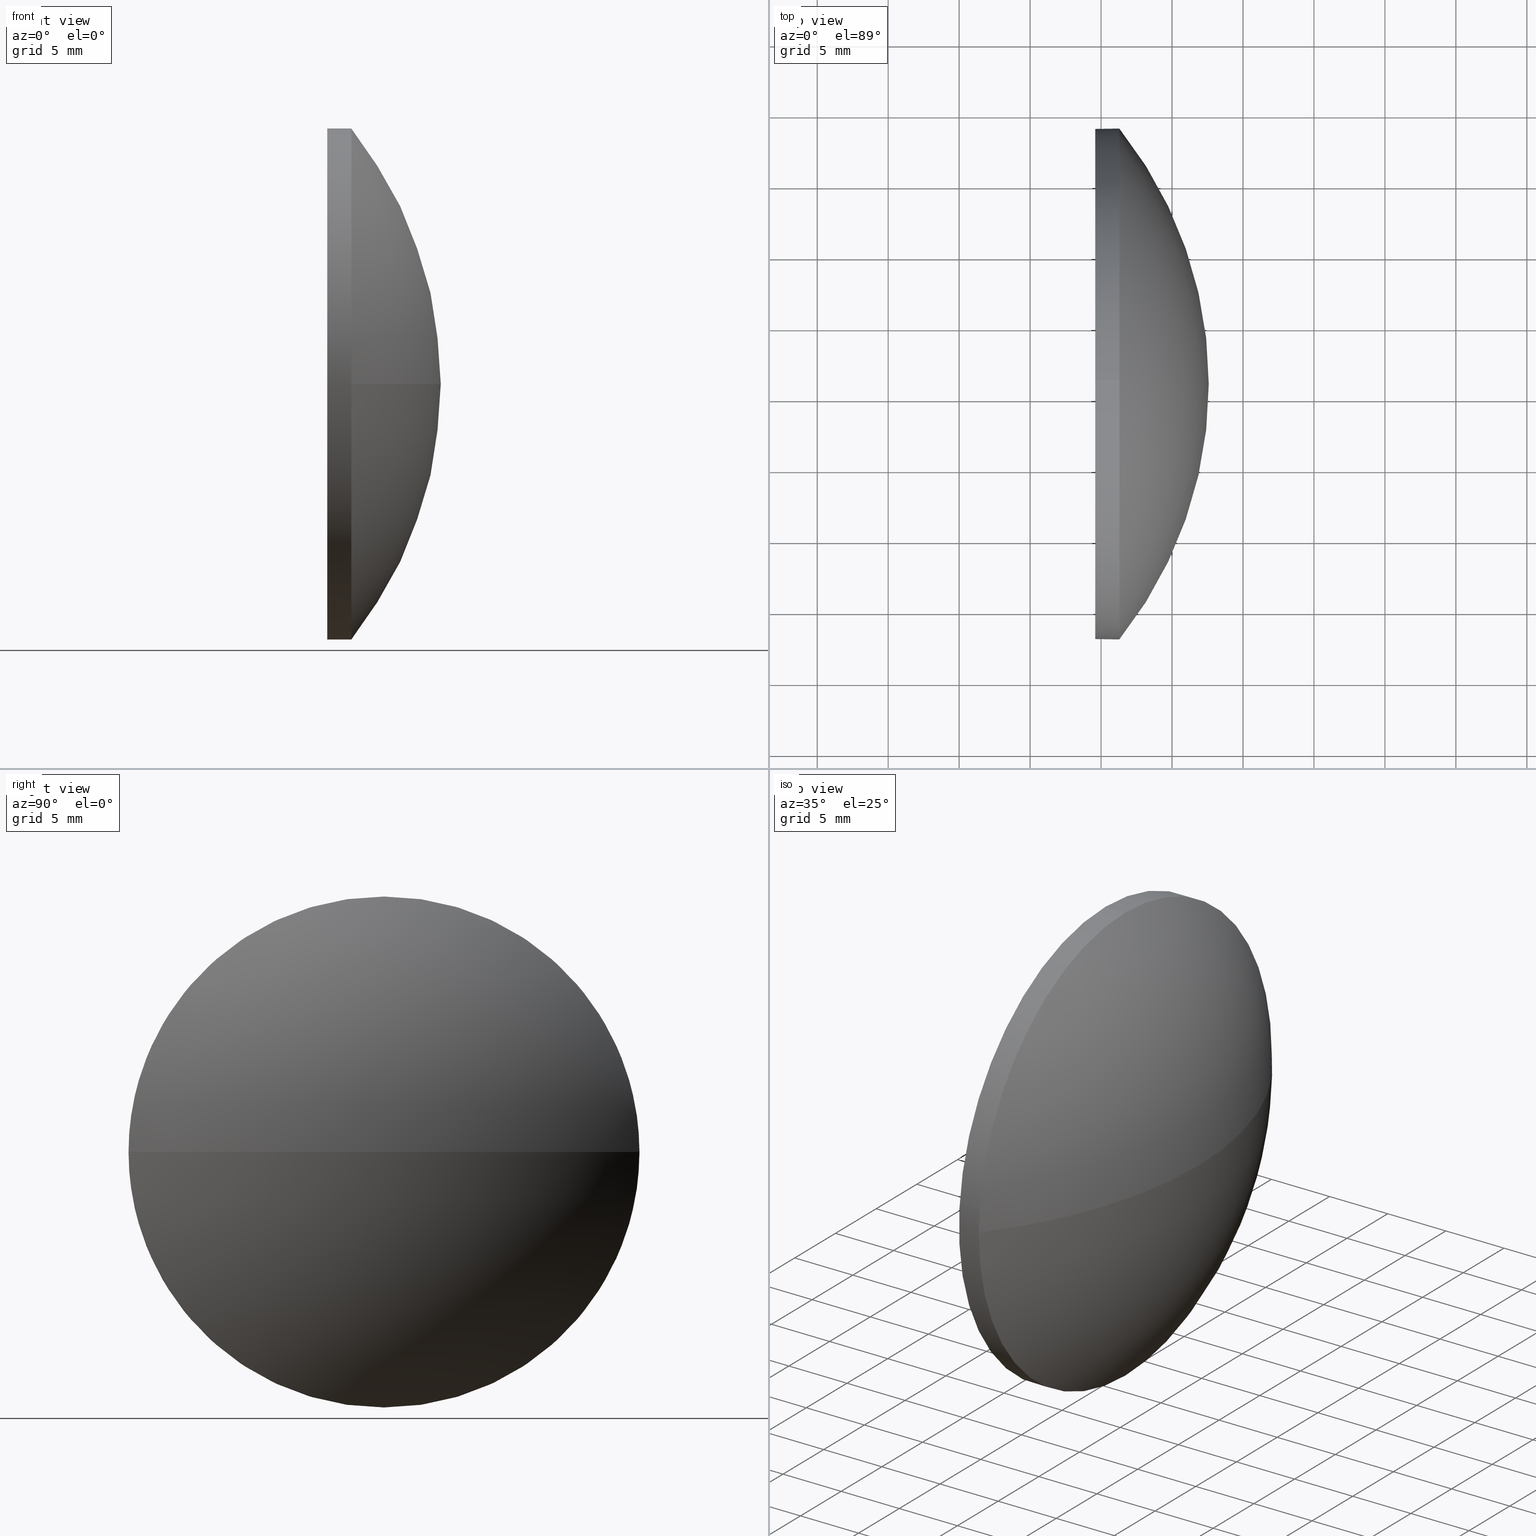
[diagram: canonical four-view strip — front | top / right | iso, engineering-drawing reading convention]
A machine part, canonical four-view strip (front | top / right | iso — engineering-drawing reading convention). The complete STEP part file that produces these views, byte-faithful:
ISO-10303-21;
HEADER;
FILE_DESCRIPTION (( 'STEP AP214' ),
    '1' );
FILE_NAME ('100384.STEP',
    '2019-06-05T01:28:54',
    ( '' ),
    ( '' ),
    'SwSTEP 2.0',
    'SolidWorks 2016',
    '' );
FILE_SCHEMA (( 'AUTOMOTIVE_DESIGN' ));
ENDSEC;

DATA;
#1 = CLOSED_SHELL ( 'NONE', ( #59, #160, #90, #121, #39 ) ) ;
#2 = DIRECTION ( 'NONE',  ( -0.0000000000000000000, 0.0000000000000000000, 1.000000000000000000 ) ) ;
#3 = EDGE_CURVE ( 'NONE', #108, #89, #120, .T. ) ;
#4 =( LENGTH_UNIT ( ) NAMED_UNIT ( * ) SI_UNIT ( .MILLI., .METRE. ) );
#5 = SURFACE_SIDE_STYLE ('',( #75 ) ) ;
#6 = SPHERICAL_SURFACE ( 'NONE', #127, 28.86428571428574600 ) ;
#7 = EDGE_LOOP ( 'NONE', ( #65, #40 ) ) ;
#8 = CARTESIAN_POINT ( 'NONE',  ( 379.5886439777123100, 55.92268159127587500, 18.00000000000000400 ) ) ;
#9 = SURFACE_SIDE_STYLE ('',( #55 ) ) ;
#10 = ORIENTED_EDGE ( 'NONE', *, *, #29, .T. ) ;
#11 = EDGE_CURVE ( 'NONE', #49, #92, #23, .T. ) ;
#12 = PRESENTATION_STYLE_ASSIGNMENT (( #37 ) ) ;
#13 = VERTEX_POINT ( 'NONE', #176 ) ;
#14 = LINE ( 'NONE', #131, #106 ) ;
#15 = EDGE_LOOP ( 'NONE', ( #45, #71, #43, #56 ) ) ;
#16 = ORIENTED_EDGE ( 'NONE', *, *, #111, .T. ) ;
#17 = AXIS2_PLACEMENT_3D ( 'NONE', #152, #130, #166 ) ;
#18 = CARTESIAN_POINT ( 'NONE',  ( 358.7243582634265500, 55.92268159127585400, 0.0000000000000000000 ) ) ;
#19 = CARTESIAN_POINT ( 'NONE',  ( 379.5886439777123100, 55.92268159127587500, 0.0000000000000000000 ) ) ;
#20 = CARTESIAN_POINT ( 'NONE',  ( 381.2886439777123000, 55.92268159127587500, 0.0000000000000000000 ) ) ;
#21 = FILL_AREA_STYLE ('',( #102 ) ) ;
#22 = CARTESIAN_POINT ( 'NONE',  ( 381.2886439777123000, 55.92268159127587500, 0.0000000000000000000 ) ) ;
#23 = CIRCLE ( 'NONE', #119, 18.00000000000000400 ) ;
#24 = EDGE_CURVE ( 'NONE', #108, #92, #122, .T. ) ;
#25 = PRESENTATION_STYLE_ASSIGNMENT (( #50 ) ) ;
#26 = ORIENTED_EDGE ( 'NONE', *, *, #173, .F. ) ;
#27 = PRESENTATION_LAYER_ASSIGNMENT (  '', '', ( #168 ) ) ;
#28 = EDGE_CURVE ( 'NONE', #49, #13, #137, .T. ) ;
#29 = EDGE_CURVE ( 'NONE', #92, #81, #62, .T. ) ;
#30 = DIRECTION ( 'NONE',  ( -0.0000000000000000000, 0.0000000000000000000, -1.000000000000000000 ) ) ;
#31 = DIRECTION ( 'NONE',  ( -1.000000000000000000, -0.0000000000000000000, -0.0000000000000000000 ) ) ;
#32 = COLOUR_RGB ( '',1.000000000000000000, 1.000000000000000000, 1.000000000000000000 ) ;
#33 = CARTESIAN_POINT ( 'NONE',  ( 381.2886439777123000, 55.92268159127587500, 18.00000000000000400 ) ) ;
#34 = ORIENTED_EDGE ( 'NONE', *, *, #24, .T. ) ;
#35 = CARTESIAN_POINT ( 'NONE',  ( 374.0107276786080800, 55.92268159127587500, 0.0000000000000000000 ) ) ;
#36 = DIRECTION ( 'NONE',  ( 0.0000000000000000000, 1.000000000000000000, 0.0000000000000000000 ) ) ;
#37 = SURFACE_STYLE_USAGE ( .BOTH. , #9 ) ;
#38 = ORIENTED_EDGE ( 'NONE', *, *, #94, .F. ) ;
#39 = ADVANCED_FACE ( 'NONE', ( #172 ), #125, .F. ) ;
#40 = ORIENTED_EDGE ( 'NONE', *, *, #82, .T. ) ;
#41 = AXIS2_PLACEMENT_3D ( 'NONE', #179, #114, #86 ) ;
#42 = AXIS2_PLACEMENT_3D ( 'NONE', #69, #2, #112 ) ;
#43 = ORIENTED_EDGE ( 'NONE', *, *, #87, .F. ) ;
#44 = SHAPE_DEFINITION_REPRESENTATION ( #109, #157 ) ;
#45 = ORIENTED_EDGE ( 'NONE', *, *, #24, .F. ) ;
#46 = AXIS2_PLACEMENT_3D ( 'NONE', #22, #31, #74 ) ;
#47 = PRODUCT ( '100384', '100384', '', ( #104 ) ) ;
#48 = CARTESIAN_POINT ( 'NONE',  ( 381.2886439777123000, 55.92268159127587500, 0.0000000000000000000 ) ) ;
#49 = VERTEX_POINT ( 'NONE', #113 ) ;
#50 = SURFACE_STYLE_USAGE ( .BOTH. , #5 ) ;
#51 = AXIS2_PLACEMENT_3D ( 'NONE', #118, #153, #180 ) ;
#52 = DIRECTION ( 'NONE',  ( 0.0000000000000000000, 0.0000000000000000000, 1.000000000000000000 ) ) ;
#53 = APPLICATION_CONTEXT ( 'automotive_design' ) ;
#54 = AXIS2_PLACEMENT_3D ( 'NONE', #35, #147, #140 ) ;
#55 = SURFACE_STYLE_FILL_AREA ( #21 ) ;
#56 = ORIENTED_EDGE ( 'NONE', *, *, #29, .F. ) ;
#57 = UNCERTAINTY_MEASURE_WITH_UNIT (LENGTH_MEASURE( 1.000000000000000100E-005 ), #132, 'distance_accuracy_value', 'NONE');
#58 = ORIENTED_EDGE ( 'NONE', *, *, #87, .T. ) ;
#59 = ADVANCED_FACE ( 'NONE', ( #135 ), #178, .T. ) ;
#60 =( GEOMETRIC_REPRESENTATION_CONTEXT ( 3 ) GLOBAL_UNCERTAINTY_ASSIGNED_CONTEXT ( ( #57 ) ) GLOBAL_UNIT_ASSIGNED_CONTEXT ( ( #132, #169, #156 ) ) REPRESENTATION_CONTEXT ( 'NONE', 'WORKASPACE' ) );
#61 = AXIS2_PLACEMENT_3D ( 'NONE', #19, #171, #141 ) ;
#62 = CIRCLE ( 'NONE', #67, 18.00000000000000400 ) ;
#63 = PRODUCT_DEFINITION_FORMATION_WITH_SPECIFIED_SOURCE ( '�κ�', '', #47, .NOT_KNOWN. ) ;
#64 = CYLINDRICAL_SURFACE ( 'NONE', #54, 18.00000000000000400 ) ;
#65 = ORIENTED_EDGE ( 'NONE', *, *, #94, .T. ) ;
#66 = DIRECTION ( 'NONE',  ( 0.0000000000000000000, 0.0000000000000000000, 1.000000000000000000 ) ) ;
#67 = AXIS2_PLACEMENT_3D ( 'NONE', #20, #164, #52 ) ;
#68 = CARTESIAN_POINT ( 'NONE',  ( 381.2886439777123000, 37.92268159127586800, -2.204364238465233900E-015 ) ) ;
#69 = CARTESIAN_POINT ( 'NONE',  ( 358.7243582634265500, 55.92268159127585400, 0.0000000000000000000 ) ) ;
#70 = DIRECTION ( 'NONE',  ( 0.0000000000000000000, 1.000000000000000000, 0.0000000000000000000 ) ) ;
#71 = ORIENTED_EDGE ( 'NONE', *, *, #3, .T. ) ;
#72 = FILL_AREA_STYLE_COLOUR ( '', #32 ) ;
#73 = PRODUCT_RELATED_PRODUCT_CATEGORY ( 'part', '', ( #47 ) ) ;
#74 = DIRECTION ( 'NONE',  ( 0.0000000000000000000, 0.0000000000000000000, 1.000000000000000000 ) ) ;
#75 = SURFACE_STYLE_FILL_AREA ( #163 ) ;
#76 = CIRCLE ( 'NONE', #61, 18.00000000000000400 ) ;
#77 = AXIS2_PLACEMENT_3D ( 'NONE', #115, #85, #129 ) ;
#78 = VECTOR ( 'NONE', #83, 1000.000000000000000 ) ;
#79 = EDGE_LOOP ( 'NONE', ( #182, #162, #10, #16, #91 ) ) ;
#80 = DIRECTION ( 'NONE',  ( 0.0000000000000000000, 1.224646799147353200E-016, -1.000000000000000000 ) ) ;
#81 = VERTEX_POINT ( 'NONE', #33 ) ;
#82 = EDGE_CURVE ( 'NONE', #13, #161, #103, .T. ) ;
#83 = DIRECTION ( 'NONE',  ( -1.000000000000000000, -0.0000000000000000000, -0.0000000000000000000 ) ) ;
#84 = DIRECTION ( 'NONE',  ( 0.0000000000000000000, 1.000000000000000000, 1.224646799147353500E-016 ) ) ;
#85 = DIRECTION ( 'NONE',  ( -1.000000000000000000, -0.0000000000000000000, -0.0000000000000000000 ) ) ;
#86 = DIRECTION ( 'NONE',  ( 0.0000000000000000000, 0.0000000000000000000, 1.000000000000000000 ) ) ;
#87 = EDGE_CURVE ( 'NONE', #81, #89, #105, .T. ) ;
#88 = APPLICATION_CONTEXT ( 'automotive_design' ) ;
#89 = VERTEX_POINT ( 'NONE', #142 ) ;
#90 = ADVANCED_FACE ( 'NONE', ( #95 ), #144, .T. ) ;
#91 = ORIENTED_EDGE ( 'NONE', *, *, #82, .F. ) ;
#92 = VERTEX_POINT ( 'NONE', #68 ) ;
#93 = UNCERTAINTY_MEASURE_WITH_UNIT (LENGTH_MEASURE( 1.000000000000000100E-005 ), #4, 'distance_accuracy_value', 'NONE');
#94 = EDGE_CURVE ( 'NONE', #161, #13, #76, .T. ) ;
#95 = FACE_OUTER_BOUND ( 'NONE', #15, .T. ) ;
#96 = STYLED_ITEM ( 'NONE', ( #25 ), #124 ) ;
#97 = CARTESIAN_POINT ( 'NONE',  ( 374.0107276786080800, 55.92268159127587500, -18.00000000000000400 ) ) ;
#98 = APPLICATION_PROTOCOL_DEFINITION ( 'draft international standard', 'automotive_design', 1998, #88 ) ;
#99 = AXIS2_PLACEMENT_3D ( 'NONE', #101, #30, #36 ) ;
#100 =( NAMED_UNIT ( * ) PLANE_ANGLE_UNIT ( ) SI_UNIT ( $, .RADIAN. ) );
#101 = CARTESIAN_POINT ( 'NONE',  ( 358.7243582634265500, 55.92268159127585400, 0.0000000000000000000 ) ) ;
#102 = FILL_AREA_STYLE_COLOUR ( '', #134 ) ;
#103 = CIRCLE ( 'NONE', #77, 18.00000000000000400 ) ;
#104 = PRODUCT_CONTEXT ( 'NONE', #53, 'mechanical' ) ;
#105 = CIRCLE ( 'NONE', #46, 18.00000000000000400 ) ;
#106 = VECTOR ( 'NONE', #165, 1000.000000000000000 ) ;
#107 = FACE_OUTER_BOUND ( 'NONE', #174, .T. ) ;
#108 = VERTEX_POINT ( 'NONE', #154 ) ;
#109 = PRODUCT_DEFINITION_SHAPE ( 'NONE', 'NONE',  #185 ) ;
#110 =( GEOMETRIC_REPRESENTATION_CONTEXT ( 3 ) GLOBAL_UNCERTAINTY_ASSIGNED_CONTEXT ( ( #175 ) ) GLOBAL_UNIT_ASSIGNED_CONTEXT ( ( #167, #100, #116 ) ) REPRESENTATION_CONTEXT ( 'NONE', 'WORKASPACE' ) );
#111 = EDGE_CURVE ( 'NONE', #81, #161, #14, .T. ) ;
#112 = DIRECTION ( 'NONE',  ( 1.000000000000000000, 0.0000000000000000000, 0.0000000000000000000 ) ) ;
#113 = CARTESIAN_POINT ( 'NONE',  ( 381.2886439777123000, 55.92268159127587500, -18.00000000000000400 ) ) ;
#114 = DIRECTION ( 'NONE',  ( -1.000000000000000000, -0.0000000000000000000, -0.0000000000000000000 ) ) ;
#115 = CARTESIAN_POINT ( 'NONE',  ( 379.5886439777123100, 55.92268159127587500, 0.0000000000000000000 ) ) ;
#116 =( NAMED_UNIT ( * ) SI_UNIT ( $, .STERADIAN. ) SOLID_ANGLE_UNIT ( ) );
#117 = AXIS2_PLACEMENT_3D ( 'NONE', #181, #145, #184 ) ;
#118 = CARTESIAN_POINT ( 'NONE',  ( 374.0107276786080800, 55.92268159127587500, 0.0000000000000000000 ) ) ;
#119 = AXIS2_PLACEMENT_3D ( 'NONE', #48, #151, #66 ) ;
#120 = CIRCLE ( 'NONE', #42, 28.86428571428573200 ) ;
#121 = ADVANCED_FACE ( 'NONE', ( #148 ), #64, .T. ) ;
#122 = CIRCLE ( 'NONE', #177, 28.86428571428573900 ) ;
#123 = PRESENTATION_LAYER_ASSIGNMENT (  '', '', ( #96 ) ) ;
#124 = MANIFOLD_SOLID_BREP ( '��ת1', #1 ) ;
#125 = PLANE ( 'NONE',  #17 ) ;
#126 = CARTESIAN_POINT ( 'NONE',  ( 358.7243582634265500, 55.92268159127585400, 0.0000000000000000000 ) ) ;
#127 = AXIS2_PLACEMENT_3D ( 'NONE', #126, #133, #70 ) ;
#128 = EDGE_LOOP ( 'NONE', ( #150, #159, #38, #139, #58 ) ) ;
#129 = DIRECTION ( 'NONE',  ( 0.0000000000000000000, 0.0000000000000000000, 1.000000000000000000 ) ) ;
#130 = DIRECTION ( 'NONE',  ( 1.000000000000000000, 0.0000000000000000000, 0.0000000000000000000 ) ) ;
#131 = CARTESIAN_POINT ( 'NONE',  ( 374.0107276786080800, 55.92268159127587500, 18.00000000000000400 ) ) ;
#132 =( LENGTH_UNIT ( ) NAMED_UNIT ( * ) SI_UNIT ( .MILLI., .METRE. ) );
#133 = DIRECTION ( 'NONE',  ( -0.0000000000000000000, 0.0000000000000000000, -1.000000000000000000 ) ) ;
#134 = COLOUR_RGB ( '',1.000000000000000000, 1.000000000000000000, 1.000000000000000000 ) ;
#135 = FACE_OUTER_BOUND ( 'NONE', #128, .T. ) ;
#136 = ORIENTED_EDGE ( 'NONE', *, *, #11, .F. ) ;
#137 = LINE ( 'NONE', #97, #78 ) ;
#138 = MECHANICAL_DESIGN_GEOMETRIC_PRESENTATION_REPRESENTATION (  '', ( #96 ), #146 ) ;
#139 = ORIENTED_EDGE ( 'NONE', *, *, #111, .F. ) ;
#140 = DIRECTION ( 'NONE',  ( 0.0000000000000000000, 0.0000000000000000000, 1.000000000000000000 ) ) ;
#141 = DIRECTION ( 'NONE',  ( 0.0000000000000000000, 0.0000000000000000000, 1.000000000000000000 ) ) ;
#142 = CARTESIAN_POINT ( 'NONE',  ( 381.2886439777123000, 73.92268159127586100, 0.0000000000000000000 ) ) ;
#143 =( NAMED_UNIT ( * ) SI_UNIT ( $, .STERADIAN. ) SOLID_ANGLE_UNIT ( ) );
#144 = SPHERICAL_SURFACE ( 'NONE', #99, 28.86428571428574600 ) ;
#145 = DIRECTION ( 'NONE',  ( 0.0000000000000000000, 0.0000000000000000000, 1.000000000000000000 ) ) ;
#146 =( GEOMETRIC_REPRESENTATION_CONTEXT ( 3 ) GLOBAL_UNCERTAINTY_ASSIGNED_CONTEXT ( ( #93 ) ) GLOBAL_UNIT_ASSIGNED_CONTEXT ( ( #4, #155, #143 ) ) REPRESENTATION_CONTEXT ( 'NONE', 'WORKASPACE' ) );
#147 = DIRECTION ( 'NONE',  ( -1.000000000000000000, -0.0000000000000000000, -0.0000000000000000000 ) ) ;
#148 = FACE_OUTER_BOUND ( 'NONE', #79, .T. ) ;
#149 = PRODUCT_DEFINITION_CONTEXT ( 'detailed design', #88, 'design' ) ;
#150 = ORIENTED_EDGE ( 'NONE', *, *, #173, .T. ) ;
#151 = DIRECTION ( 'NONE',  ( -1.000000000000000000, -0.0000000000000000000, -0.0000000000000000000 ) ) ;
#152 = CARTESIAN_POINT ( 'NONE',  ( 379.5886439777123100, 55.92268159127587500, 0.0000000000000000000 ) ) ;
#153 = DIRECTION ( 'NONE',  ( -1.000000000000000000, -0.0000000000000000000, -0.0000000000000000000 ) ) ;
#154 = CARTESIAN_POINT ( 'NONE',  ( 387.5886439777122500, 55.92268159127585400, 0.0000000000000000000 ) ) ;
#155 =( NAMED_UNIT ( * ) PLANE_ANGLE_UNIT ( ) SI_UNIT ( $, .RADIAN. ) );
#156 =( NAMED_UNIT ( * ) SI_UNIT ( $, .STERADIAN. ) SOLID_ANGLE_UNIT ( ) );
#157 = ADVANCED_BREP_SHAPE_REPRESENTATION ( '100384', ( #124, #117 ), #110 ) ;
#158 = CIRCLE ( 'NONE', #41, 18.00000000000000400 ) ;
#159 = ORIENTED_EDGE ( 'NONE', *, *, #28, .T. ) ;
#160 = ADVANCED_FACE ( 'NONE', ( #107 ), #6, .T. ) ;
#161 = VERTEX_POINT ( 'NONE', #8 ) ;
#162 = ORIENTED_EDGE ( 'NONE', *, *, #11, .T. ) ;
#163 = FILL_AREA_STYLE ('',( #72 ) ) ;
#164 = DIRECTION ( 'NONE',  ( -1.000000000000000000, -0.0000000000000000000, -0.0000000000000000000 ) ) ;
#165 = DIRECTION ( 'NONE',  ( -1.000000000000000000, -0.0000000000000000000, -0.0000000000000000000 ) ) ;
#166 = DIRECTION ( 'NONE',  ( 0.0000000000000000000, 0.0000000000000000000, -1.000000000000000000 ) ) ;
#167 =( LENGTH_UNIT ( ) NAMED_UNIT ( * ) SI_UNIT ( .MILLI., .METRE. ) );
#168 = STYLED_ITEM ( 'NONE', ( #12 ), #157 ) ;
#169 =( NAMED_UNIT ( * ) PLANE_ANGLE_UNIT ( ) SI_UNIT ( $, .RADIAN. ) );
#170 = ORIENTED_EDGE ( 'NONE', *, *, #3, .F. ) ;
#171 = DIRECTION ( 'NONE',  ( -1.000000000000000000, -0.0000000000000000000, -0.0000000000000000000 ) ) ;
#172 = FACE_OUTER_BOUND ( 'NONE', #7, .T. ) ;
#173 = EDGE_CURVE ( 'NONE', #89, #49, #158, .T. ) ;
#174 = EDGE_LOOP ( 'NONE', ( #170, #34, #136, #26 ) ) ;
#175 = UNCERTAINTY_MEASURE_WITH_UNIT (LENGTH_MEASURE( 1.000000000000000100E-005 ), #167, 'distance_accuracy_value', 'NONE');
#176 = CARTESIAN_POINT ( 'NONE',  ( 379.5886439777123100, 55.92268159127587500, -18.00000000000000400 ) ) ;
#177 = AXIS2_PLACEMENT_3D ( 'NONE', #18, #80, #84 ) ;
#178 = CYLINDRICAL_SURFACE ( 'NONE', #51, 18.00000000000000400 ) ;
#179 = CARTESIAN_POINT ( 'NONE',  ( 381.2886439777123000, 55.92268159127587500, 0.0000000000000000000 ) ) ;
#180 = DIRECTION ( 'NONE',  ( 0.0000000000000000000, 0.0000000000000000000, 1.000000000000000000 ) ) ;
#181 = CARTESIAN_POINT ( 'NONE',  ( 0.0000000000000000000, 0.0000000000000000000, 0.0000000000000000000 ) ) ;
#182 = ORIENTED_EDGE ( 'NONE', *, *, #28, .F. ) ;
#183 = APPLICATION_PROTOCOL_DEFINITION ( 'draft international standard', 'automotive_design', 1998, #53 ) ;
#184 = DIRECTION ( 'NONE',  ( 1.000000000000000000, 0.0000000000000000000, 0.0000000000000000000 ) ) ;
#185 = PRODUCT_DEFINITION ( 'δ֪', '', #63, #149 ) ;
#186 = MECHANICAL_DESIGN_GEOMETRIC_PRESENTATION_REPRESENTATION (  '', ( #168 ), #60 ) ;
ENDSEC;
END-ISO-10303-21;
